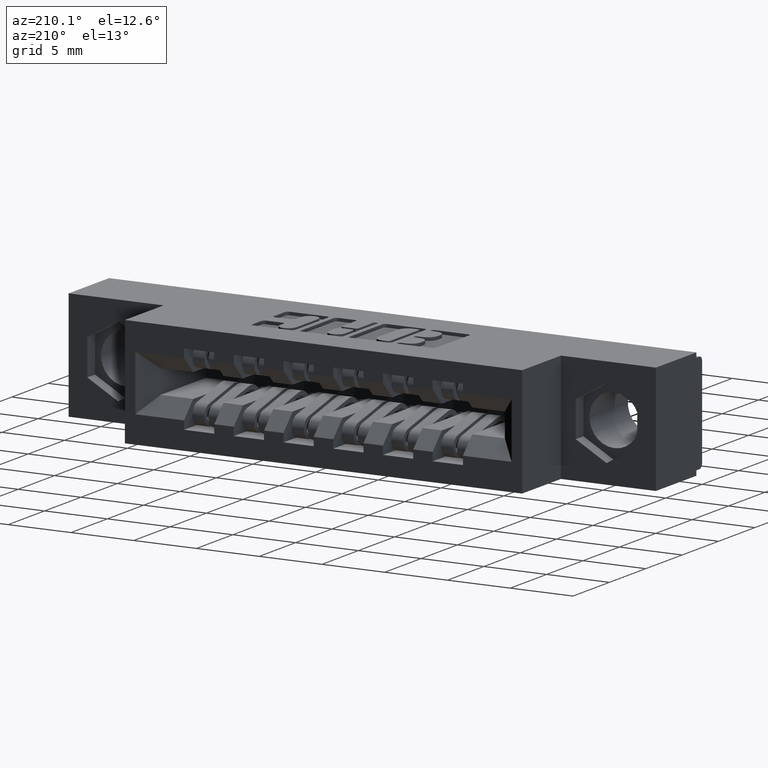
[diagram: clean part render]
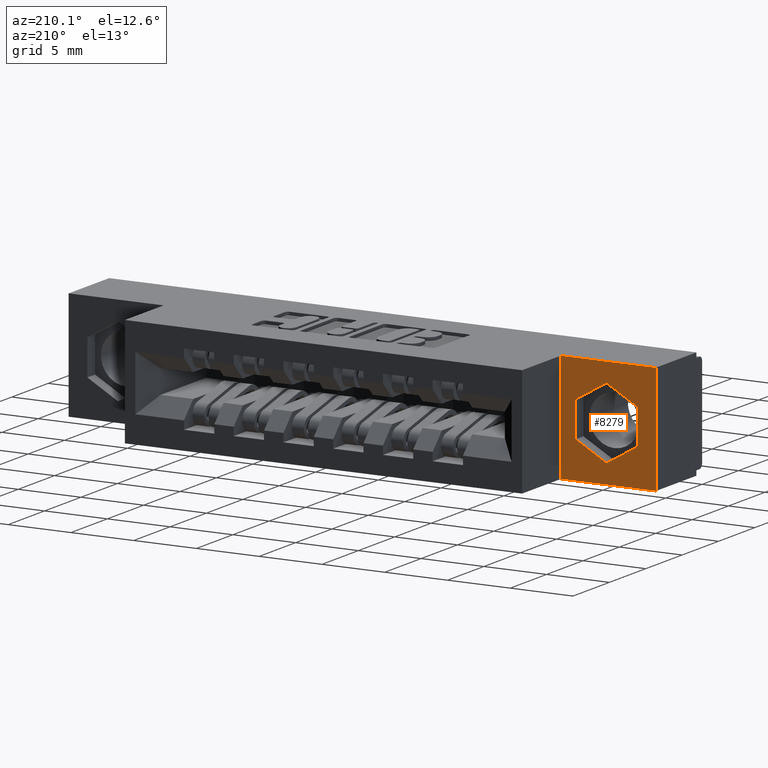
[diagram: same view with one face highlighted and labeled with its STEP entity id]
A machine part, auxiliary view. The second image highlights one B-rep face of the part: STEP entity #8279.
In plain terms, the highlighted planar face has unit normal (0, -1, 0).
Its self-contained STEP definition (entity closure, byte-faithful):
#25 = ORIENTED_EDGE ( 'NONE', *, *, #444, .F. ) ;
#202 = LINE ( 'NONE', #7455, #2419 ) ;
#214 = LINE ( 'NONE', #774, #5237 ) ;
#444 = EDGE_CURVE ( 'NONE', #5554, #8734, #8591, .T. ) ;
#774 = CARTESIAN_POINT ( 'NONE',  ( 0.1549999999999999200, 0.2500000000000000600, -0.06007139804640229700 ) ) ;
#877 = DIRECTION ( 'NONE',  ( 0.0000000000000000000, 0.0000000000000000000, -1.000000000000000000 ) ) ;
#918 = VECTOR ( 'NONE', #9149, 39.37007874015748100 ) ;
#936 = CARTESIAN_POINT ( 'NONE',  ( 0.05849999999999989200, 0.2500000000000000600, -0.1157856990232011000 ) ) ;
#961 = CARTESIAN_POINT ( 'NONE',  ( 0.1549999999999999200, 0.2500000000000000600, -0.06007139804640229700 ) ) ;
#1082 = VERTEX_POINT ( 'NONE', #9208 ) ;
#1298 = LINE ( 'NONE', #10246, #11311 ) ;
#1319 = DIRECTION ( 'NONE',  ( -0.8660254037844390400, 0.0000000000000000000, -0.4999999999999994400 ) ) ;
#1322 = ORIENTED_EDGE ( 'NONE', *, *, #1497, .F. ) ;
#1330 = EDGE_LOOP ( 'NONE', ( #7755, #2211, #10260, #7643 ) ) ;
#1352 = EDGE_CURVE ( 'NONE', #6099, #6857, #214, .T. ) ;
#1447 = CARTESIAN_POINT ( 'NONE',  ( 0.2514999999999997800, 0.2500000000000000600, -0.2272143009767989800 ) ) ;
#1497 = EDGE_CURVE ( 'NONE', #6857, #2536, #202, .T. ) ;
#1741 = CARTESIAN_POINT ( 'NONE',  ( 0.1549999999999998000, 0.2500000000000000600, -0.2829286019535977600 ) ) ;
#1783 = EDGE_CURVE ( 'NONE', #7477, #5188, #5924, .T. ) ;
#1935 = EDGE_CURVE ( 'NONE', #8734, #6099, #9526, .T. ) ;
#2211 = ORIENTED_EDGE ( 'NONE', *, *, #1783, .T. ) ;
#2419 = VECTOR ( 'NONE', #9297, 39.37007874015748100 ) ;
#2422 = EDGE_CURVE ( 'NONE', #6304, #7477, #5344, .T. ) ;
#2536 = VERTEX_POINT ( 'NONE', #4099 ) ;
#2908 = CARTESIAN_POINT ( 'NONE',  ( 0.05849999999999987800, 0.2500000000000000600, -0.2272143009767988400 ) ) ;
#2947 = VECTOR ( 'NONE', #6758, 39.37007874015748100 ) ;
#3209 = EDGE_LOOP ( 'NONE', ( #11227, #7662, #1322, #3791, #7272, #25 ) ) ;
#3333 = DIRECTION ( 'NONE',  ( 0.8660254037844384900, 0.0000000000000000000, -0.5000000000000002200 ) ) ;
#3747 = VECTOR ( 'NONE', #877, 39.37007874015748100 ) ;
#3791 = ORIENTED_EDGE ( 'NONE', *, *, #1352, .F. ) ;
#3989 = DIRECTION ( 'NONE',  ( -0.8660254037844384900, 0.0000000000000000000, 0.5000000000000002200 ) ) ;
#4099 = CARTESIAN_POINT ( 'NONE',  ( 0.2514999999999997800, 0.2500000000000000600, -0.2272143009767989800 ) ) ;
#4318 = EDGE_CURVE ( 'NONE', #5188, #1082, #6125, .T. ) ;
#4508 = CARTESIAN_POINT ( 'NONE',  ( 0.0000000000000000000, 0.2500000000000000600, -0.3430000000000000300 ) ) ;
#4571 = DIRECTION ( 'NONE',  ( 0.8660254037844390400, 0.0000000000000000000, 0.4999999999999994400 ) ) ;
#4711 = LINE ( 'NONE', #10747, #6673 ) ;
#5071 = FACE_OUTER_BOUND ( 'NONE', #1330, .T. ) ;
#5188 = VERTEX_POINT ( 'NONE', #11531 ) ;
#5237 = VECTOR ( 'NONE', #3333, 39.37007874015749600 ) ;
#5344 = LINE ( 'NONE', #9439, #2947 ) ;
#5464 = DIRECTION ( 'NONE',  ( -1.000000000000000000, -0.0000000000000000000, -0.0000000000000000000 ) ) ;
#5525 = CARTESIAN_POINT ( 'NONE',  ( 0.05849999999999989200, 0.2500000000000000600, -0.1157856990232011000 ) ) ;
#5530 = CARTESIAN_POINT ( 'NONE',  ( 0.0000000000000000000, 0.2500000000000000600, 0.0000000000000000000 ) ) ;
#5554 = VERTEX_POINT ( 'NONE', #6289 ) ;
#5852 = EDGE_CURVE ( 'NONE', #2536, #10264, #8147, .T. ) ;
#5924 = LINE ( 'NONE', #9592, #11312 ) ;
#6099 = VERTEX_POINT ( 'NONE', #961 ) ;
#6125 = LINE ( 'NONE', #7999, #3747 ) ;
#6289 = CARTESIAN_POINT ( 'NONE',  ( 0.05849999999999987800, 0.2500000000000000600, -0.2272143009767988400 ) ) ;
#6304 = VERTEX_POINT ( 'NONE', #4508 ) ;
#6506 = DIRECTION ( 'NONE',  ( 0.0000000000000000000, -0.0000000000000000000, -1.000000000000000000 ) ) ;
#6673 = VECTOR ( 'NONE', #5464, 39.37007874015748100 ) ;
#6758 = DIRECTION ( 'NONE',  ( -0.0000000000000000000, -0.0000000000000000000, 1.000000000000000000 ) ) ;
#6857 = VERTEX_POINT ( 'NONE', #6896 ) ;
#6896 = CARTESIAN_POINT ( 'NONE',  ( 0.2514999999999998300, 0.2500000000000000600, -0.1157856990232011700 ) ) ;
#7272 = ORIENTED_EDGE ( 'NONE', *, *, #1935, .F. ) ;
#7455 = CARTESIAN_POINT ( 'NONE',  ( 0.2514999999999998300, 0.2500000000000000600, -0.1157856990232011700 ) ) ;
#7477 = VERTEX_POINT ( 'NONE', #5530 ) ;
#7625 = CARTESIAN_POINT ( 'NONE',  ( 0.0000000000000000000, 0.2500000000000000600, -0.3430000000000000300 ) ) ;
#7643 = ORIENTED_EDGE ( 'NONE', *, *, #10835, .T. ) ;
#7662 = ORIENTED_EDGE ( 'NONE', *, *, #5852, .F. ) ;
#7755 = ORIENTED_EDGE ( 'NONE', *, *, #2422, .T. ) ;
#7823 = EDGE_CURVE ( 'NONE', #10264, #5554, #1298, .T. ) ;
#7999 = CARTESIAN_POINT ( 'NONE',  ( 0.2979999999999999900, 0.2500000000000000600, 0.0000000000000000000 ) ) ;
#8147 = LINE ( 'NONE', #1447, #10781 ) ;
#8279 = ADVANCED_FACE ( 'NONE', ( #9391, #5071 ), #10399, .F. ) ;
#8591 = LINE ( 'NONE', #2908, #918 ) ;
#8734 = VERTEX_POINT ( 'NONE', #5525 ) ;
#9149 = DIRECTION ( 'NONE',  ( 1.532286115149483800E-016, 0.0000000000000000000, 1.000000000000000000 ) ) ;
#9181 = DIRECTION ( 'NONE',  ( 0.0000000000000000000, -1.000000000000000000, 0.0000000000000000000 ) ) ;
#9208 = CARTESIAN_POINT ( 'NONE',  ( 0.2979999999999999900, 0.2500000000000000600, -0.3430000000000000300 ) ) ;
#9297 = DIRECTION ( 'NONE',  ( -3.064572230298965700E-016, 0.0000000000000000000, -1.000000000000000000 ) ) ;
#9391 = FACE_BOUND ( 'NONE', #3209, .T. ) ;
#9439 = CARTESIAN_POINT ( 'NONE',  ( 0.0000000000000000000, 0.2500000000000000600, 0.0000000000000000000 ) ) ;
#9526 = LINE ( 'NONE', #936, #10342 ) ;
#9592 = CARTESIAN_POINT ( 'NONE',  ( 0.0000000000000000000, 0.2500000000000000600, 0.0000000000000000000 ) ) ;
#9705 = DIRECTION ( 'NONE',  ( 1.000000000000000000, 0.0000000000000000000, 0.0000000000000000000 ) ) ;
#10246 = CARTESIAN_POINT ( 'NONE',  ( 0.1549999999999998600, 0.2500000000000000600, -0.2829286019535977600 ) ) ;
#10260 = ORIENTED_EDGE ( 'NONE', *, *, #4318, .T. ) ;
#10264 = VERTEX_POINT ( 'NONE', #1741 ) ;
#10342 = VECTOR ( 'NONE', #4571, 39.37007874015748900 ) ;
#10399 = PLANE ( 'NONE',  #10736 ) ;
#10736 = AXIS2_PLACEMENT_3D ( 'NONE', #7625, #9181, #6506 ) ;
#10747 = CARTESIAN_POINT ( 'NONE',  ( 0.0000000000000000000, 0.2500000000000000600, -0.3430000000000000300 ) ) ;
#10781 = VECTOR ( 'NONE', #1319, 39.37007874015748900 ) ;
#10835 = EDGE_CURVE ( 'NONE', #1082, #6304, #4711, .T. ) ;
#11227 = ORIENTED_EDGE ( 'NONE', *, *, #7823, .F. ) ;
#11311 = VECTOR ( 'NONE', #3989, 39.37007874015749600 ) ;
#11312 = VECTOR ( 'NONE', #9705, 39.37007874015748100 ) ;
#11531 = CARTESIAN_POINT ( 'NONE',  ( 0.2979999999999999900, 0.2500000000000000600, 0.0000000000000000000 ) ) ;